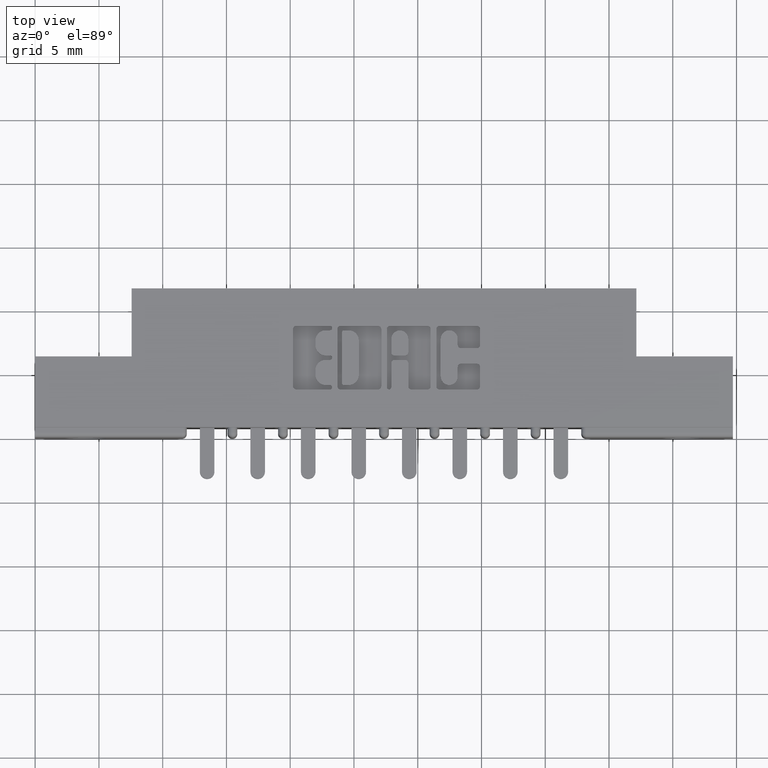
[diagram: clean part render]
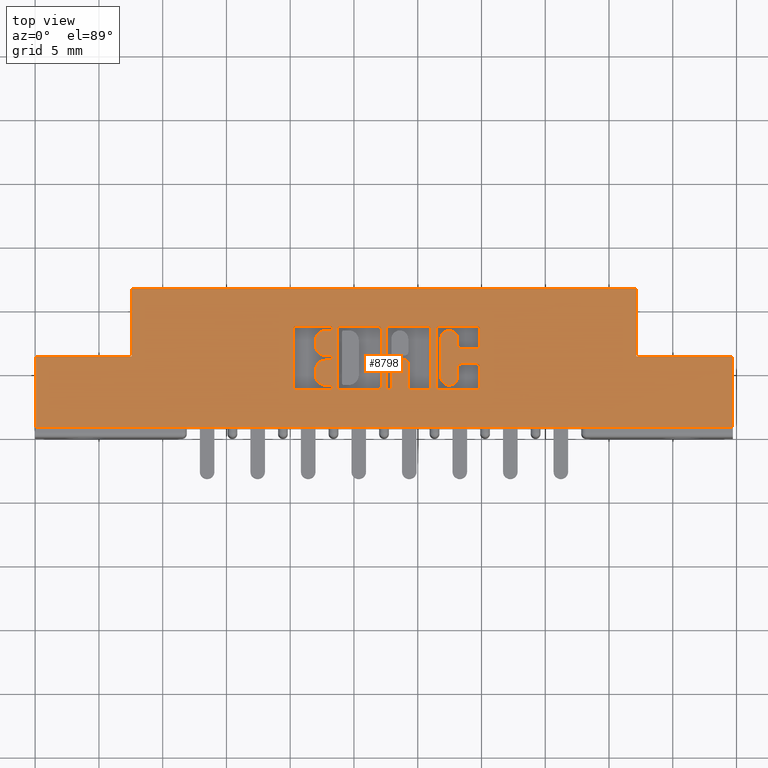
[diagram: same view with one face highlighted and labeled with its STEP entity id]
A machine part, top view. The second image highlights one B-rep face of the part: STEP entity #8798.
In plain terms, the highlighted planar face has unit normal (0, 0, -1).
Its self-contained STEP definition (entity closure, byte-faithful):
#1 = DIRECTION ( 'NONE',  ( -0.0000000000000000000, 0.0000000000000000000, 1.000000000000000000 ) ) ;
#2 = AXIS2_PLACEMENT_3D ( 'NONE', #3667, #3717, #10406 ) ;
#21 = CARTESIAN_POINT ( 'NONE',  ( 0.9101336065353514700, 0.3367857328953892700, 0.0000000000000000000 ) ) ;
#28 = LINE ( 'NONE', #2415, #11050 ) ;
#37 = ORIENTED_EDGE ( 'NONE', *, *, #8806, .F. ) ;
#42 = VERTEX_POINT ( 'NONE', #8355 ) ;
#43 = LINE ( 'NONE', #6203, #11974 ) ;
#47 = EDGE_LOOP ( 'NONE', ( #692, #10960, #11804, #3870, #10270, #9288, #11392, #4095 ) ) ;
#94 = DIRECTION ( 'NONE',  ( 1.000000000000000000, 0.0000000000000000000, 0.0000000000000000000 ) ) ;
#141 = EDGE_CURVE ( 'NONE', #7538, #1929, #4172, .T. ) ;
#168 = DIRECTION ( 'NONE',  ( -0.0000000000000000000, 0.0000000000000000000, 1.000000000000000000 ) ) ;
#197 = EDGE_CURVE ( 'NONE', #6405, #11685, #3413, .T. ) ;
#274 = ORIENTED_EDGE ( 'NONE', *, *, #9663, .F. ) ;
#282 = VECTOR ( 'NONE', #3290, 39.37007874015748100 ) ;
#298 = EDGE_LOOP ( 'NONE', ( #11876, #9888, #2341, #11479, #400, #11168, #1679, #454, #12674, #11080, #3527, #12098, #2391, #9557, #3407, #8560, #5893, #1800, #7988, #2490 ) ) ;
#341 = CIRCLE ( 'NONE', #811, 0.009815670203796511200 ) ;
#380 = CIRCLE ( 'NONE', #9877, 0.03141014465217440600 ) ;
#381 = EDGE_CURVE ( 'NONE', #11785, #7505, #5803, .T. ) ;
#392 = ORIENTED_EDGE ( 'NONE', *, *, #12428, .F. ) ;
#400 = ORIENTED_EDGE ( 'NONE', *, *, #11337, .T. ) ;
#426 = ORIENTED_EDGE ( 'NONE', *, *, #9522, .T. ) ;
#430 = VERTEX_POINT ( 'NONE', #2569 ) ;
#450 = DIRECTION ( 'NONE',  ( -1.000000000000000000, -0.0000000000000000000, -0.0000000000000000000 ) ) ;
#454 = ORIENTED_EDGE ( 'NONE', *, *, #9792, .F. ) ;
#487 = CARTESIAN_POINT ( 'NONE',  ( 1.221044960240806900, 0.1571589681657839000, 0.0000000000000000000 ) ) ;
#498 = LINE ( 'NONE', #9334, #5708 ) ;
#501 = DIRECTION ( 'NONE',  ( -0.0000000000000000000, 0.0000000000000000000, 1.000000000000000000 ) ) ;
#502 = CARTESIAN_POINT ( 'NONE',  ( 1.314293827176977500, 0.2744562271012366800, 0.0000000000000000000 ) ) ;
#504 = LINE ( 'NONE', #11952, #5387 ) ;
#516 = ORIENTED_EDGE ( 'NONE', *, *, #10735, .F. ) ;
#542 = CARTESIAN_POINT ( 'NONE',  ( 1.095404381632127500, 0.3338410318342131500, 0.0000000000000000000 ) ) ;
#593 = DIRECTION ( 'NONE',  ( 0.0000000000000000000, -1.000000000000000000, 0.0000000000000000000 ) ) ;
#614 = VERTEX_POINT ( 'NONE', #3595 ) ;
#639 = EDGE_CURVE ( 'NONE', #7046, #12482, #852, .T. ) ;
#679 = CARTESIAN_POINT ( 'NONE',  ( 0.2979999999999999900, 0.2500000000000000600, 0.0000000000000000000 ) ) ;
#680 = VERTEX_POINT ( 'NONE', #1386 ) ;
#682 = LINE ( 'NONE', #11570, #9560 ) ;
#692 = ORIENTED_EDGE ( 'NONE', *, *, #12637, .F. ) ;
#750 = EDGE_CURVE ( 'NONE', #6405, #5198, #11383, .T. ) ;
#763 = CARTESIAN_POINT ( 'NONE',  ( 1.058595618367862200, 0.1473432979619862500, 0.0000000000000000000 ) ) ;
#790 = ORIENTED_EDGE ( 'NONE', *, *, #5836, .T. ) ;
#811 = AXIS2_PLACEMENT_3D ( 'NONE', #542, #7381, #7473 ) ;
#852 = LINE ( 'NONE', #5234, #9750 ) ;
#923 = AXIS2_PLACEMENT_3D ( 'NONE', #2074, #11886, #8062 ) ;
#943 = AXIS2_PLACEMENT_3D ( 'NONE', #6930, #5495, #94 ) ;
#945 = CARTESIAN_POINT ( 'NONE',  ( 1.109146319917450300, 0.2386290308573517100, 0.0000000000000000000 ) ) ;
#981 = DIRECTION ( 'NONE',  ( -0.0000000000000000000, 0.0000000000000000000, 1.000000000000000000 ) ) ;
#995 = VECTOR ( 'NONE', #4635, 39.37007874015748100 ) ;
#1001 = VECTOR ( 'NONE', #2649, 39.37007874015748100 ) ;
#1008 = VECTOR ( 'NONE', #11612, 39.37007874015748100 ) ;
#1009 = CARTESIAN_POINT ( 'NONE',  ( 1.856000000000000100, 0.2500000000000000600, 0.0000000000000000000 ) ) ;
#1040 = VECTOR ( 'NONE', #4679, 39.37007874015748100 ) ;
#1052 = VERTEX_POINT ( 'NONE', #4499 ) ;
#1070 = ORIENTED_EDGE ( 'NONE', *, *, #7882, .F. ) ;
#1072 = VECTOR ( 'NONE', #9507, 39.37007874015748100 ) ;
#1077 = DIRECTION ( 'NONE',  ( 1.000000000000000000, 0.0000000000000000000, 0.0000000000000000000 ) ) ;
#1091 = CARTESIAN_POINT ( 'NONE',  ( 1.099330649713647000, 0.2288133606535486500, 0.0000000000000000000 ) ) ;
#1118 = EDGE_CURVE ( 'NONE', #11872, #3286, #6300, .T. ) ;
#1120 = CARTESIAN_POINT ( 'NONE',  ( 0.9101336065353514700, 0.3436567020380357200, 0.0000000000000000000 ) ) ;
#1180 = ORIENTED_EDGE ( 'NONE', *, *, #3347, .T. ) ;
#1186 = LINE ( 'NONE', #8394, #5017 ) ;
#1191 = EDGE_CURVE ( 'NONE', #5287, #11361, #8142, .T. ) ;
#1218 = AXIS2_PLACEMENT_3D ( 'NONE', #9057, #10038, #11007 ) ;
#1241 = EDGE_CURVE ( 'NONE', #5364, #7138, #10730, .T. ) ;
#1265 = LINE ( 'NONE', #10485, #1707 ) ;
#1279 = VECTOR ( 'NONE', #2520, 39.37007874015748100 ) ;
#1364 = CARTESIAN_POINT ( 'NONE',  ( 2.153999999999999900, 0.2500000000000000600, 0.0000000000000000000 ) ) ;
#1378 = CARTESIAN_POINT ( 'NONE',  ( 0.8966370600051096800, 0.1924953808994934500, 0.0000000000000000000 ) ) ;
#1382 = DIRECTION ( 'NONE',  ( 1.000000000000000000, 0.0000000000000000000, 0.0000000000000000000 ) ) ;
#1386 = CARTESIAN_POINT ( 'NONE',  ( 2.153999999999999900, 0.03100000000000000000, 0.0000000000000000000 ) ) ;
#1398 = DIRECTION ( 'NONE',  ( 1.000000000000000000, 0.0000000000000000000, 0.0000000000000000000 ) ) ;
#1416 = AXIS2_PLACEMENT_3D ( 'NONE', #4384, #12222, #1382 ) ;
#1423 = EDGE_CURVE ( 'NONE', #11957, #8886, #6138, .T. ) ;
#1427 = AXIS2_PLACEMENT_3D ( 'NONE', #1678, #7493, #7668 ) ;
#1442 = CIRCLE ( 'NONE', #6728, 0.006870969142648433200 ) ;
#1447 = CARTESIAN_POINT ( 'NONE',  ( 0.9101336064154144100, 0.1473432979619887500, 0.0000000000000000000 ) ) ;
#1468 = CARTESIAN_POINT ( 'NONE',  ( 1.856000000000000100, 0.4600000000000000200, 0.0000000000000000000 ) ) ;
#1483 = CARTESIAN_POINT ( 'NONE',  ( 1.085588711428330900, 0.3338410318342131500, 0.0000000000000000000 ) ) ;
#1502 = CARTESIAN_POINT ( 'NONE',  ( 0.8966370600051096800, 0.1610852362473116600, 0.0000000000000000000 ) ) ;
#1534 = VECTOR ( 'NONE', #10140, 39.37007874015748100 ) ;
#1575 = AXIS2_PLACEMENT_3D ( 'NONE', #5791, #1, #12588 ) ;
#1596 = ORIENTED_EDGE ( 'NONE', *, *, #3758, .F. ) ;
#1639 = CARTESIAN_POINT ( 'NONE',  ( 1.058595618367896200, 0.3436567020380540400, 0.0000000000000000000 ) ) ;
#1649 = VECTOR ( 'NONE', #10962, 39.37007874015748100 ) ;
#1668 = ORIENTED_EDGE ( 'NONE', *, *, #8746, .F. ) ;
#1676 = VERTEX_POINT ( 'NONE', #5939 ) ;
#1678 = CARTESIAN_POINT ( 'NONE',  ( 1.058595618367862200, 0.1571589681657930300, 0.0000000000000000000 ) ) ;
#1679 = ORIENTED_EDGE ( 'NONE', *, *, #750, .T. ) ;
#1707 = VECTOR ( 'NONE', #3562, 39.37007874015748100 ) ;
#1712 = VECTOR ( 'NONE', #9011, 39.37007874015748100 ) ;
#1716 = CARTESIAN_POINT ( 'NONE',  ( 1.251964321382818400, 0.3036578459575326500, 0.0000000000000000000 ) ) ;
#1718 = AXIS2_PLACEMENT_3D ( 'NONE', #12606, #6719, #1848 ) ;
#1755 = VERTEX_POINT ( 'NONE', #4264 ) ;
#1800 = ORIENTED_EDGE ( 'NONE', *, *, #2128, .F. ) ;
#1820 = DIRECTION ( 'NONE',  ( 1.000000000000000000, 0.0000000000000000000, 0.0000000000000000000 ) ) ;
#1840 = EDGE_CURVE ( 'NONE', #5756, #4029, #504, .T. ) ;
#1848 = DIRECTION ( 'NONE',  ( 1.000000000000000000, 0.0000000000000000000, 0.0000000000000000000 ) ) ;
#1861 = CARTESIAN_POINT ( 'NONE',  ( 0.9101336064153888700, 0.2386290308573598700, 0.0000000000000000000 ) ) ;
#1863 = DIRECTION ( 'NONE',  ( 1.000000000000000000, 0.0000000000000000000, 0.0000000000000000000 ) ) ;
#1875 = AXIS2_PLACEMENT_3D ( 'NONE', #9119, #8053, #3228 ) ;
#1885 = VERTEX_POINT ( 'NONE', #1447 ) ;
#1903 = EDGE_CURVE ( 'NONE', #1052, #12482, #341, .T. ) ;
#1909 = DIRECTION ( 'NONE',  ( 0.0000000000000000000, -1.000000000000000000, 0.0000000000000000000 ) ) ;
#1914 = CARTESIAN_POINT ( 'NONE',  ( 1.363862961706167100, 0.2842718973050417100, 0.0000000000000000000 ) ) ;
#1929 = VERTEX_POINT ( 'NONE', #4971 ) ;
#1936 = VERTEX_POINT ( 'NONE', #1120 ) ;
#1958 = LINE ( 'NONE', #10204, #11327 ) ;
#1977 = DIRECTION ( 'NONE',  ( -0.0000000000000000000, 0.0000000000000000000, 1.000000000000000000 ) ) ;
#2049 = LINE ( 'NONE', #7677, #12645 ) ;
#2063 = CARTESIAN_POINT ( 'NONE',  ( 1.161660155507785700, 0.1473432979619876700, 0.0000000000000000000 ) ) ;
#2067 = VERTEX_POINT ( 'NONE', #2063 ) ;
#2074 = CARTESIAN_POINT ( 'NONE',  ( 1.161660155507788100, 0.1571589681657909200, 0.0000000000000000000 ) ) ;
#2125 = DIRECTION ( 'NONE',  ( -0.0000000000000000000, 0.0000000000000000000, 1.000000000000000000 ) ) ;
#2128 = EDGE_CURVE ( 'NONE', #9559, #7210, #43, .T. ) ;
#2164 = CIRCLE ( 'NONE', #11744, 0.009815670203796237100 ) ;
#2169 = LINE ( 'NONE', #6316, #6035 ) ;
#2173 = CARTESIAN_POINT ( 'NONE',  ( 2.153999999999999900, 0.2500000000000000600, 0.0000000000000000000 ) ) ;
#2176 = CARTESIAN_POINT ( 'NONE',  ( 1.151844485303984600, 0.0000000000000000000, 0.0000000000000000000 ) ) ;
#2228 = DIRECTION ( 'NONE',  ( 0.0000000000000000000, -1.000000000000000000, 0.0000000000000000000 ) ) ;
#2247 = DIRECTION ( 'NONE',  ( 1.000000000000000000, 0.0000000000000000000, 0.0000000000000000000 ) ) ;
#2266 = CARTESIAN_POINT ( 'NONE',  ( 2.153999999999999900, 0.4600000000000000200, 0.0000000000000000000 ) ) ;
#2299 = CARTESIAN_POINT ( 'NONE',  ( 0.8966370600050841400, 0.2386290308573598700, 0.0000000000000000000 ) ) ;
#2341 = ORIENTED_EDGE ( 'NONE', *, *, #10581, .F. ) ;
#2391 = ORIENTED_EDGE ( 'NONE', *, *, #4376, .F. ) ;
#2406 = CARTESIAN_POINT ( 'NONE',  ( 1.248038053301265400, 0.1571589681657930300, 0.0000000000000000000 ) ) ;
#2415 = CARTESIAN_POINT ( 'NONE',  ( -0.0000000000000000000, 0.1473432979619862500, 0.0000000000000000000 ) ) ;
#2433 = CARTESIAN_POINT ( 'NONE',  ( 0.9101336065353100600, 0.2455000000000234200, 0.0000000000000000000 ) ) ;
#2444 = VECTOR ( 'NONE', #11575, 39.37007874015748100 ) ;
#2447 = CARTESIAN_POINT ( 'NONE',  ( 1.373678631909940300, 0.2170345564089734800, 0.0000000000000000000 ) ) ;
#2490 = ORIENTED_EDGE ( 'NONE', *, *, #6647, .F. ) ;
#2520 = DIRECTION ( 'NONE',  ( -1.000000000000000000, 0.0000000000000000000, 0.0000000000000000000 ) ) ;
#2546 = ORIENTED_EDGE ( 'NONE', *, *, #1903, .F. ) ;
#2569 = CARTESIAN_POINT ( 'NONE',  ( 0.2979999999999999900, 0.2500000000000000600, 0.0000000000000000000 ) ) ;
#2570 = CARTESIAN_POINT ( 'NONE',  ( -8.177847276076744500E-015, 0.2386290308573137100, 0.0000000000000000000 ) ) ;
#2574 = EDGE_CURVE ( 'NONE', #7505, #5645, #11282, .T. ) ;
#2596 = DIRECTION ( 'NONE',  ( 0.0000000000000000000, 1.000000000000000000, -0.0000000000000000000 ) ) ;
#2622 = ORIENTED_EDGE ( 'NONE', *, *, #3711, .T. ) ;
#2623 = DIRECTION ( 'NONE',  ( 1.000000000000000000, 0.0000000000000000000, 0.0000000000000000000 ) ) ;
#2625 = ORIENTED_EDGE ( 'NONE', *, *, #7788, .F. ) ;
#2628 = LINE ( 'NONE', #10258, #10156 ) ;
#2642 = VERTEX_POINT ( 'NONE', #4292 ) ;
#2648 = ORIENTED_EDGE ( 'NONE', *, *, #5294, .F. ) ;
#2649 = DIRECTION ( 'NONE',  ( -1.000000000000000000, 0.0000000000000000000, 0.0000000000000000000 ) ) ;
#2660 = VERTEX_POINT ( 'NONE', #10347 ) ;
#2714 = VECTOR ( 'NONE', #10917, 39.37007874015748100 ) ;
#2851 = ORIENTED_EDGE ( 'NONE', *, *, #8930, .F. ) ;
#2882 = VERTEX_POINT ( 'NONE', #9153 ) ;
#2945 = CARTESIAN_POINT ( 'NONE',  ( 1.068411288571669000, 0.0000000000000000000, 0.0000000000000000000 ) ) ;
#2960 = VECTOR ( 'NONE', #1820, 39.37007874015748100 ) ;
#2962 = EDGE_CURVE ( 'NONE', #5645, #1755, #11363, .T. ) ;
#2986 = DIRECTION ( 'NONE',  ( 1.000000000000000000, 0.0000000000000000000, 0.0000000000000000000 ) ) ;
#3062 = ORIENTED_EDGE ( 'NONE', *, *, #11398, .F. ) ;
#3077 = DIRECTION ( 'NONE',  ( 1.000000000000000000, 0.0000000000000000000, 0.0000000000000000000 ) ) ;
#3081 = EDGE_CURVE ( 'NONE', #4840, #4842, #8800, .T. ) ;
#3124 = DIRECTION ( 'NONE',  ( 1.000000000000000000, 0.0000000000000000000, 0.0000000000000000000 ) ) ;
#3165 = VERTEX_POINT ( 'NONE', #8974 ) ;
#3187 = DIRECTION ( 'NONE',  ( -0.0000000000000000000, 0.0000000000000000000, 1.000000000000000000 ) ) ;
#3228 = DIRECTION ( 'NONE',  ( 1.000000000000000000, 0.0000000000000000000, 0.0000000000000000000 ) ) ;
#3250 = AXIS2_PLACEMENT_3D ( 'NONE', #3313, #3187, #2247 ) ;
#3256 = VERTEX_POINT ( 'NONE', #4921 ) ;
#3286 = VERTEX_POINT ( 'NONE', #10665 ) ;
#3290 = DIRECTION ( 'NONE',  ( 0.0000000000000000000, -1.000000000000000000, 0.0000000000000000000 ) ) ;
#3313 = CARTESIAN_POINT ( 'NONE',  ( 1.142028815100187800, 0.2288133606535558700, 0.0000000000000000000 ) ) ;
#3332 = VERTEX_POINT ( 'NONE', #7763 ) ;
#3347 = EDGE_CURVE ( 'NONE', #614, #6518, #682, .T. ) ;
#3375 = VERTEX_POINT ( 'NONE', #1091 ) ;
#3394 = CARTESIAN_POINT ( 'NONE',  ( 0.8966370600051254400, 0.3299147637527387600, 0.0000000000000000000 ) ) ;
#3407 = ORIENTED_EDGE ( 'NONE', *, *, #5541, .F. ) ;
#3413 = LINE ( 'NONE', #4581, #995 ) ;
#3450 = CIRCLE ( 'NONE', #5336, 0.009815670203806754800 ) ;
#3527 = ORIENTED_EDGE ( 'NONE', *, *, #5815, .F. ) ;
#3562 = DIRECTION ( 'NONE',  ( -1.000000000000000000, 0.0000000000000000000, 0.0000000000000000000 ) ) ;
#3584 = CARTESIAN_POINT ( 'NONE',  ( 0.9170045756779977600, 0.1542142671046510300, 0.0000000000000000000 ) ) ;
#3595 = CARTESIAN_POINT ( 'NONE',  ( 0.0000000000000000000, 0.2500000000000000600, 0.0000000000000000000 ) ) ;
#3615 = AXIS2_PLACEMENT_3D ( 'NONE', #9073, #11071, #5197 ) ;
#3620 = LINE ( 'NONE', #679, #1040 ) ;
#3659 = CARTESIAN_POINT ( 'NONE',  ( 1.085588711428330900, 0.1542142671046510300, 0.0000000000000000000 ) ) ;
#3667 = CARTESIAN_POINT ( 'NONE',  ( 0.9101336065353355900, 0.1542142671046510300, 0.0000000000000000000 ) ) ;
#3711 = EDGE_CURVE ( 'NONE', #1052, #2882, #10108, .T. ) ;
#3717 = DIRECTION ( 'NONE',  ( -0.0000000000000000000, 0.0000000000000000000, 1.000000000000000000 ) ) ;
#3758 = EDGE_CURVE ( 'NONE', #6258, #7676, #7492, .T. ) ;
#3847 = VERTEX_POINT ( 'NONE', #8075 ) ;
#3870 = ORIENTED_EDGE ( 'NONE', *, *, #11072, .F. ) ;
#3877 = EDGE_CURVE ( 'NONE', #3375, #10859, #2169, .T. ) ;
#3892 = CARTESIAN_POINT ( 'NONE',  ( -0.0000000000000000000, 0.1473432979619862500, 0.0000000000000000000 ) ) ;
#3944 = CIRCLE ( 'NONE', #10123, 0.009815670203806345400 ) ;
#3972 = DIRECTION ( 'NONE',  ( 1.000000000000000000, 0.0000000000000000000, 0.0000000000000000000 ) ) ;
#4012 = CARTESIAN_POINT ( 'NONE',  ( 0.8966370600050841400, 0.2072188862052036200, 0.0000000000000000000 ) ) ;
#4027 = CARTESIAN_POINT ( 'NONE',  ( 1.363862961706167100, 0.2744562271012366800, 0.0000000000000000000 ) ) ;
#4029 = VERTEX_POINT ( 'NONE', #4027 ) ;
#4031 = ORIENTED_EDGE ( 'NONE', *, *, #9745, .F. ) ;
#4082 = CARTESIAN_POINT ( 'NONE',  ( -0.0000000000000000000, 0.3299147637527387600, 0.0000000000000000000 ) ) ;
#4090 = CARTESIAN_POINT ( 'NONE',  ( -1.915567620543177100E-014, 0.1610852362472050500, 0.0000000000000000000 ) ) ;
#4095 = ORIENTED_EDGE ( 'NONE', *, *, #1241, .F. ) ;
#4115 = DIRECTION ( 'NONE',  ( 1.000000000000000000, 0.0000000000000000000, 0.0000000000000000000 ) ) ;
#4134 = CARTESIAN_POINT ( 'NONE',  ( 1.278221239177998800, 0.1873421540424560800, 0.0000000000000000000 ) ) ;
#4135 = CIRCLE ( 'NONE', #4347, 0.009815670203822599700 ) ;
#4172 = CIRCLE ( 'NONE', #1427, 0.009815670203806891800 ) ;
#4253 = EDGE_CURVE ( 'NONE', #1885, #6258, #5317, .T. ) ;
#4264 = CARTESIAN_POINT ( 'NONE',  ( 0.9101336065353100600, 0.2523709691426869200, 0.0000000000000000000 ) ) ;
#4292 = CARTESIAN_POINT ( 'NONE',  ( 0.8652269153529097400, 0.2985046191005228900, 0.0000000000000000000 ) ) ;
#4347 = AXIS2_PLACEMENT_3D ( 'NONE', #6600, #7626, #2623 ) ;
#4376 = EDGE_CURVE ( 'NONE', #8171, #3256, #3944, .T. ) ;
#4384 = CARTESIAN_POINT ( 'NONE',  ( 1.314293827176977500, 0.2842718973050482600, 0.0000000000000000000 ) ) ;
#4457 = CIRCLE ( 'NONE', #12416, 0.03141014465218178200 ) ;
#4499 = CARTESIAN_POINT ( 'NONE',  ( 1.095404381632127500, 0.3436567020380096300, 0.0000000000000000000 ) ) ;
#4502 = CARTESIAN_POINT ( 'NONE',  ( 1.151844485303984600, 0.2288133606535465200, 0.0000000000000000000 ) ) ;
#4568 = VERTEX_POINT ( 'NONE', #8251 ) ;
#4581 = CARTESIAN_POINT ( 'NONE',  ( 1.251964321382818400, 0.0000000000000000000, 0.0000000000000000000 ) ) ;
#4635 = DIRECTION ( 'NONE',  ( 0.0000000000000000000, 1.000000000000000000, -0.0000000000000000000 ) ) ;
#4643 = CARTESIAN_POINT ( 'NONE',  ( 0.0000000000000000000, 0.4600000000000000200, 0.0000000000000000000 ) ) ;
#4675 = FACE_BOUND ( 'NONE', #298, .T. ) ;
#4679 = DIRECTION ( 'NONE',  ( -0.0000000000000000000, 1.000000000000000000, -0.0000000000000000000 ) ) ;
#4710 = ORIENTED_EDGE ( 'NONE', *, *, #7406, .T. ) ;
#4764 = CARTESIAN_POINT ( 'NONE',  ( 1.092459680570987000, 0.1542142671046510300, 0.0000000000000000000 ) ) ;
#4773 = EDGE_CURVE ( 'NONE', #8096, #9559, #11287, .T. ) ;
#4776 = EDGE_CURVE ( 'NONE', #1929, #12312, #8396, .T. ) ;
#4795 = EDGE_CURVE ( 'NONE', #11785, #8105, #6842, .T. ) ;
#4807 = VERTEX_POINT ( 'NONE', #11928 ) ;
#4820 = CARTESIAN_POINT ( 'NONE',  ( 1.109146319917450300, 0.2288133606535486500, 0.0000000000000000000 ) ) ;
#4840 = VERTEX_POINT ( 'NONE', #11809 ) ;
#4842 = VERTEX_POINT ( 'NONE', #10837 ) ;
#4852 = CARTESIAN_POINT ( 'NONE',  ( -1.013135022034645900E-015, 0.1473432979619824800, 0.0000000000000000000 ) ) ;
#4865 = ORIENTED_EDGE ( 'NONE', *, *, #6361, .T. ) ;
#4906 = DIRECTION ( 'NONE',  ( 0.0000000000000000000, -1.000000000000000000, 0.0000000000000000000 ) ) ;
#4908 = DIRECTION ( 'NONE',  ( 0.0000000000000000000, 1.000000000000000000, -0.0000000000000000000 ) ) ;
#4914 = CARTESIAN_POINT ( 'NONE',  ( 1.248038053301299600, 0.3338410318342131500, 0.0000000000000000000 ) ) ;
#4918 = VERTEX_POINT ( 'NONE', #7235 ) ;
#4921 = CARTESIAN_POINT ( 'NONE',  ( 1.373678631909940300, 0.1571589681657860300, 0.0000000000000000000 ) ) ;
#4956 = EDGE_CURVE ( 'NONE', #5287, #2882, #9820, .T. ) ;
#4961 = CIRCLE ( 'NONE', #11996, 0.006870969142657995000 ) ;
#4966 = EDGE_CURVE ( 'NONE', #7210, #9646, #6876, .T. ) ;
#4971 = CARTESIAN_POINT ( 'NONE',  ( 1.068411288571669000, 0.1571589681657930300, 0.0000000000000000000 ) ) ;
#4999 = CARTESIAN_POINT ( 'NONE',  ( 1.363862961706134200, 0.1473432979619862500, 0.0000000000000000000 ) ) ;
#5004 = DIRECTION ( 'NONE',  ( -0.0000000000000000000, 0.0000000000000000000, 1.000000000000000000 ) ) ;
#5017 = VECTOR ( 'NONE', #7317, 39.37007874015748100 ) ;
#5024 = VERTEX_POINT ( 'NONE', #7060 ) ;
#5078 = VECTOR ( 'NONE', #5733, 39.37007874015748100 ) ;
#5139 = DIRECTION ( 'NONE',  ( 0.0000000000000000000, 1.000000000000000000, -0.0000000000000000000 ) ) ;
#5148 = VERTEX_POINT ( 'NONE', #11053 ) ;
#5177 = VERTEX_POINT ( 'NONE', #12044 ) ;
#5180 = CARTESIAN_POINT ( 'NONE',  ( 1.304478156973178900, 0.1873421540424560800, 0.0000000000000000000 ) ) ;
#5197 = DIRECTION ( 'NONE',  ( 1.000000000000000000, 0.0000000000000000000, 0.0000000000000000000 ) ) ;
#5198 = VERTEX_POINT ( 'NONE', #5180 ) ;
#5210 = VECTOR ( 'NONE', #9494, 39.37007874015748100 ) ;
#5216 = AXIS2_PLACEMENT_3D ( 'NONE', #4134, #2125, #3124 ) ;
#5219 = LINE ( 'NONE', #1009, #5078 ) ;
#5231 = EDGE_CURVE ( 'NONE', #12027, #680, #5932, .T. ) ;
#5234 = CARTESIAN_POINT ( 'NONE',  ( 1.085588711428330900, 0.0000000000000000000, 0.0000000000000000000 ) ) ;
#5247 = VECTOR ( 'NONE', #2596, 39.37007874015748100 ) ;
#5284 = AXIS2_PLACEMENT_3D ( 'NONE', #5388, #7292, #6375 ) ;
#5287 = VERTEX_POINT ( 'NONE', #6114 ) ;
#5294 = EDGE_CURVE ( 'NONE', #614, #430, #8192, .T. ) ;
#5317 = CIRCLE ( 'NONE', #8404, 0.006870969142662229500 ) ;
#5328 = DIRECTION ( 'NONE',  ( -1.000000000000000000, 0.0000000000000000000, 0.0000000000000000000 ) ) ;
#5336 = AXIS2_PLACEMENT_3D ( 'NONE', #6441, #7226, #8230 ) ;
#5364 = VERTEX_POINT ( 'NONE', #1639 ) ;
#5387 = VECTOR ( 'NONE', #9064, 39.37007874015748100 ) ;
#5388 = CARTESIAN_POINT ( 'NONE',  ( 0.9427707099630102700, 0.3338410318342131500, 0.0000000000000000000 ) ) ;
#5411 = DIRECTION ( 'NONE',  ( 1.000000000000000000, 0.0000000000000000000, 0.0000000000000000000 ) ) ;
#5473 = ORIENTED_EDGE ( 'NONE', *, *, #1118, .T. ) ;
#5485 = CIRCLE ( 'NONE', #6481, 0.009815670203803203800 ) ;
#5495 = DIRECTION ( 'NONE',  ( -0.0000000000000000000, 0.0000000000000000000, 1.000000000000000000 ) ) ;
#5541 = EDGE_CURVE ( 'NONE', #5717, #4918, #7602, .T. ) ;
#5565 = ORIENTED_EDGE ( 'NONE', *, *, #1191, .T. ) ;
#5624 = EDGE_CURVE ( 'NONE', #8886, #4568, #6546, .T. ) ;
#5645 = VERTEX_POINT ( 'NONE', #6090 ) ;
#5708 = VECTOR ( 'NONE', #450, 39.37007874015748100 ) ;
#5710 = AXIS2_PLACEMENT_3D ( 'NONE', #6656, #6788, #12544 ) ;
#5717 = VERTEX_POINT ( 'NONE', #8129 ) ;
#5718 = EDGE_LOOP ( 'NONE', ( #4865, #7887, #10014, #12408, #12396, #8948, #6552, #12253, #9787, #8641, #8506, #1596, #7232, #10493, #9290, #11403, #10403, #2625, #2851, #3062, #274 ) ) ;
#5733 = DIRECTION ( 'NONE',  ( -0.0000000000000000000, 1.000000000000000000, -0.0000000000000000000 ) ) ;
#5741 = DIRECTION ( 'NONE',  ( 1.000000000000000000, 6.876017002796114900E-015, 0.0000000000000000000 ) ) ;
#5745 = CARTESIAN_POINT ( 'NONE',  ( 1.304478156973165800, 0.0000000000000000000, 0.0000000000000000000 ) ) ;
#5753 = DIRECTION ( 'NONE',  ( 1.000000000000000000, 0.0000000000000000000, 0.0000000000000000000 ) ) ;
#5756 = VERTEX_POINT ( 'NONE', #502 ) ;
#5776 = LINE ( 'NONE', #8855, #1008 ) ;
#5791 = CARTESIAN_POINT ( 'NONE',  ( 1.211229290037011600, 0.3338410318342134300, 0.0000000000000000000 ) ) ;
#5803 = LINE ( 'NONE', #10783, #10363 ) ;
#5815 = EDGE_CURVE ( 'NONE', #6744, #4840, #6042, .T. ) ;
#5827 = CARTESIAN_POINT ( 'NONE',  ( 1.304478156973178900, 0.0000000000000000000, 0.0000000000000000000 ) ) ;
#5836 = EDGE_CURVE ( 'NONE', #10757, #11872, #12462, .T. ) ;
#5893 = ORIENTED_EDGE ( 'NONE', *, *, #4966, .F. ) ;
#5916 = DIRECTION ( 'NONE',  ( -0.0000000000000000000, 0.0000000000000000000, 1.000000000000000000 ) ) ;
#5924 = DIRECTION ( 'NONE',  ( -0.0000000000000000000, 0.0000000000000000000, 1.000000000000000000 ) ) ;
#5932 = LINE ( 'NONE', #2266, #9769 ) ;
#5938 = EDGE_LOOP ( 'NONE', ( #2622, #7201, #5565, #6226, #426, #1668, #790, #5473, #9984, #4710, #9863, #4031, #9445, #2546 ) ) ;
#5939 = CARTESIAN_POINT ( 'NONE',  ( 0.8966370600050841400, 0.2523709691426869200, 0.0000000000000000000 ) ) ;
#5962 = VERTEX_POINT ( 'NONE', #7946 ) ;
#6024 = CARTESIAN_POINT ( 'NONE',  ( 1.363862961706134200, 0.1571589681657930300, 0.0000000000000000000 ) ) ;
#6035 = VECTOR ( 'NONE', #593, 39.37007874015748100 ) ;
#6042 = CIRCLE ( 'NONE', #1218, 0.009815670203787221800 ) ;
#6090 = CARTESIAN_POINT ( 'NONE',  ( 0.9170045756779734400, 0.2455000000000234200, 0.0000000000000000000 ) ) ;
#6097 = EDGE_CURVE ( 'NONE', #5024, #12398, #12446, .T. ) ;
#6100 = CARTESIAN_POINT ( 'NONE',  ( 0.8652269153529097400, 0.2837811137948614300, 0.0000000000000000000 ) ) ;
#6114 = CARTESIAN_POINT ( 'NONE',  ( 1.221044960240806900, 0.3338410318342040500, 0.0000000000000000000 ) ) ;
#6138 = LINE ( 'NONE', #12048, #9826 ) ;
#6155 = LINE ( 'NONE', #2570, #5210 ) ;
#6172 = CARTESIAN_POINT ( 'NONE',  ( 0.9101336064154144100, 0.1610852362473132700, 0.0000000000000000000 ) ) ;
#6203 = CARTESIAN_POINT ( 'NONE',  ( 0.0000000000000000000, 0.3436567020380540400, 0.0000000000000000000 ) ) ;
#6226 = ORIENTED_EDGE ( 'NONE', *, *, #10348, .F. ) ;
#6248 = PLANE ( 'NONE',  #6500 ) ;
#6258 = VERTEX_POINT ( 'NONE', #3584 ) ;
#6300 = CIRCLE ( 'NONE', #3250, 0.009815670203796920600 ) ;
#6316 = CARTESIAN_POINT ( 'NONE',  ( 1.099330649713647000, 0.0000000000000000000, 0.0000000000000000000 ) ) ;
#6361 = EDGE_CURVE ( 'NONE', #12138, #2642, #7669, .T. ) ;
#6369 = VECTOR ( 'NONE', #5741, 39.37007874015748100 ) ;
#6375 = DIRECTION ( 'NONE',  ( 1.000000000000000000, 0.0000000000000000000, 0.0000000000000000000 ) ) ;
#6405 = VERTEX_POINT ( 'NONE', #8744 ) ;
#6433 = EDGE_CURVE ( 'NONE', #7676, #8271, #12298, .T. ) ;
#6441 = CARTESIAN_POINT ( 'NONE',  ( 0.9427707099629760700, 0.1571589681657930300, 0.0000000000000000000 ) ) ;
#6481 = AXIS2_PLACEMENT_3D ( 'NONE', #4820, #5924, #2986 ) ;
#6500 = AXIS2_PLACEMENT_3D ( 'NONE', #4643, #11490, #10649 ) ;
#6518 = VERTEX_POINT ( 'NONE', #10925 ) ;
#6538 = CARTESIAN_POINT ( 'NONE',  ( 0.9101336065353355900, 0.1542142671046510300, 0.0000000000000000000 ) ) ;
#6546 = CIRCLE ( 'NONE', #1875, 0.009815670203805936000 ) ;
#6552 = ORIENTED_EDGE ( 'NONE', *, *, #381, .F. ) ;
#6579 = CARTESIAN_POINT ( 'NONE',  ( 1.363862961706168400, 0.3436567020380540400, 0.0000000000000000000 ) ) ;
#6600 = CARTESIAN_POINT ( 'NONE',  ( 0.8058421106199380500, 0.3338410318342131500, 0.0000000000000000000 ) ) ;
#6647 = EDGE_CURVE ( 'NONE', #5962, #8096, #1958, .T. ) ;
#6656 = CARTESIAN_POINT ( 'NONE',  ( 0.9101336065353514700, 0.3367857328953892700, 0.0000000000000000000 ) ) ;
#6719 = DIRECTION ( 'NONE',  ( -0.0000000000000000000, 0.0000000000000000000, 1.000000000000000000 ) ) ;
#6728 = AXIS2_PLACEMENT_3D ( 'NONE', #21, #5004, #1863 ) ;
#6744 = VERTEX_POINT ( 'NONE', #2447 ) ;
#6764 = EDGE_CURVE ( 'NONE', #3332, #2660, #10382, .T. ) ;
#6788 = DIRECTION ( 'NONE',  ( -0.0000000000000000000, 0.0000000000000000000, 1.000000000000000000 ) ) ;
#6810 = CARTESIAN_POINT ( 'NONE',  ( 0.9427707099630102700, 0.3436567020380540400, 0.0000000000000000000 ) ) ;
#6842 = CIRCLE ( 'NONE', #8337, 0.03141014465215624000 ) ;
#6847 = DIRECTION ( 'NONE',  ( 1.000000000000000000, 0.0000000000000000000, 0.0000000000000000000 ) ) ;
#6876 = CIRCLE ( 'NONE', #11881, 0.009815670203841039800 ) ;
#6930 = CARTESIAN_POINT ( 'NONE',  ( 1.278221239177992100, 0.3036578459575326500, 0.0000000000000000000 ) ) ;
#6977 = CARTESIAN_POINT ( 'NONE',  ( 1.373678631909972100, 0.3338410318341978300, 0.0000000000000000000 ) ) ;
#7046 = VERTEX_POINT ( 'NONE', #3659 ) ;
#7060 = CARTESIAN_POINT ( 'NONE',  ( 1.304478156973165800, 0.3036578454992629500, 0.0000000000000000000 ) ) ;
#7138 = VERTEX_POINT ( 'NONE', #6810 ) ;
#7201 = ORIENTED_EDGE ( 'NONE', *, *, #4956, .F. ) ;
#7210 = VERTEX_POINT ( 'NONE', #10829 ) ;
#7213 = LINE ( 'NONE', #11541, #1072 ) ;
#7226 = DIRECTION ( 'NONE',  ( -0.0000000000000000000, 0.0000000000000000000, 1.000000000000000000 ) ) ;
#7232 = ORIENTED_EDGE ( 'NONE', *, *, #4253, .F. ) ;
#7235 = CARTESIAN_POINT ( 'NONE',  ( 1.248038053301265400, 0.1473432979619862500, 0.0000000000000000000 ) ) ;
#7292 = DIRECTION ( 'NONE',  ( -0.0000000000000000000, 0.0000000000000000000, 1.000000000000000000 ) ) ;
#7317 = DIRECTION ( 'NONE',  ( -1.000000000000000000, 0.0000000000000000000, 0.0000000000000000000 ) ) ;
#7381 = DIRECTION ( 'NONE',  ( -0.0000000000000000000, 0.0000000000000000000, 1.000000000000000000 ) ) ;
#7406 = EDGE_CURVE ( 'NONE', #12661, #3375, #5485, .T. ) ;
#7473 = DIRECTION ( 'NONE',  ( 1.000000000000000000, 0.0000000000000000000, 0.0000000000000000000 ) ) ;
#7492 = CIRCLE ( 'NONE', #2, 0.006870969142662229500 ) ;
#7493 = DIRECTION ( 'NONE',  ( -0.0000000000000000000, 0.0000000000000000000, 1.000000000000000000 ) ) ;
#7505 = VERTEX_POINT ( 'NONE', #1861 ) ;
#7538 = VERTEX_POINT ( 'NONE', #763 ) ;
#7540 = VECTOR ( 'NONE', #4906, 39.37007874015748100 ) ;
#7588 = VERTEX_POINT ( 'NONE', #11608 ) ;
#7602 = CIRCLE ( 'NONE', #9930, 0.009815670203806891800 ) ;
#7626 = DIRECTION ( 'NONE',  ( -0.0000000000000000000, 0.0000000000000000000, 1.000000000000000000 ) ) ;
#7668 = DIRECTION ( 'NONE',  ( 1.000000000000000000, 0.0000000000000000000, 0.0000000000000000000 ) ) ;
#7669 = CIRCLE ( 'NONE', #1718, 0.03141014465221578900 ) ;
#7676 = VERTEX_POINT ( 'NONE', #6172 ) ;
#7677 = CARTESIAN_POINT ( 'NONE',  ( 1.238222383097458600, 0.0000000000000000000, 0.0000000000000000000 ) ) ;
#7680 = CARTESIAN_POINT ( 'NONE',  ( -0.0000000000000000000, 0.3436567020380096300, 0.0000000000000000000 ) ) ;
#7734 = CARTESIAN_POINT ( 'NONE',  ( 1.058595618367828000, 0.3338410318342129900, 0.0000000000000000000 ) ) ;
#7763 = CARTESIAN_POINT ( 'NONE',  ( 0.9329550397591692700, 0.3338410318342131500, 0.0000000000000000000 ) ) ;
#7788 = EDGE_CURVE ( 'NONE', #1936, #4807, #1186, .T. ) ;
#7821 = EDGE_CURVE ( 'NONE', #2660, #3165, #3450, .T. ) ;
#7853 = CIRCLE ( 'NONE', #943, 0.02625691779517367100 ) ;
#7882 = EDGE_CURVE ( 'NONE', #430, #11440, #3620, .T. ) ;
#7887 = ORIENTED_EDGE ( 'NONE', *, *, #10906, .F. ) ;
#7946 = CARTESIAN_POINT ( 'NONE',  ( 1.373678631909972100, 0.2842718973050417100, 0.0000000000000000000 ) ) ;
#7988 = ORIENTED_EDGE ( 'NONE', *, *, #4773, .F. ) ;
#8053 = DIRECTION ( 'NONE',  ( -0.0000000000000000000, 0.0000000000000000000, 1.000000000000000000 ) ) ;
#8062 = DIRECTION ( 'NONE',  ( 1.000000000000000000, 0.0000000000000000000, 0.0000000000000000000 ) ) ;
#8072 = LINE ( 'NONE', #4852, #6369 ) ;
#8075 = CARTESIAN_POINT ( 'NONE',  ( 1.304478156973178900, 0.2170345564089717300, 0.0000000000000000000 ) ) ;
#8096 = VERTEX_POINT ( 'NONE', #6977 ) ;
#8105 = VERTEX_POINT ( 'NONE', #8816 ) ;
#8129 = CARTESIAN_POINT ( 'NONE',  ( 1.238222383097458600, 0.1571589681657930300, 0.0000000000000000000 ) ) ;
#8142 = LINE ( 'NONE', #8227, #1534 ) ;
#8157 = EDGE_CURVE ( 'NONE', #4029, #5962, #10221, .T. ) ;
#8171 = VERTEX_POINT ( 'NONE', #4999 ) ;
#8192 = LINE ( 'NONE', #10603, #2960 ) ;
#8193 = LINE ( 'NONE', #4082, #11382 ) ;
#8227 = CARTESIAN_POINT ( 'NONE',  ( 1.221044960240806900, 0.0000000000000000000, 0.0000000000000000000 ) ) ;
#8230 = DIRECTION ( 'NONE',  ( 1.000000000000000000, 0.0000000000000000000, 0.0000000000000000000 ) ) ;
#8251 = CARTESIAN_POINT ( 'NONE',  ( 0.8058421106199185100, 0.1473432979619880300, 0.0000000000000000000 ) ) ;
#8252 = DIRECTION ( 'NONE',  ( -0.0000000000000000000, 0.0000000000000000000, 1.000000000000000000 ) ) ;
#8271 = VERTEX_POINT ( 'NONE', #1502 ) ;
#8337 = AXIS2_PLACEMENT_3D ( 'NONE', #4012, #9862, #3077 ) ;
#8355 = CARTESIAN_POINT ( 'NONE',  ( 0.9170045756779998700, 0.3367857328953892700, 0.0000000000000000000 ) ) ;
#8384 = FACE_BOUND ( 'NONE', #5938, .T. ) ;
#8394 = CARTESIAN_POINT ( 'NONE',  ( 0.0000000000000000000, 0.3436567020380357200, 0.0000000000000000000 ) ) ;
#8396 = LINE ( 'NONE', #2945, #2714 ) ;
#8404 = AXIS2_PLACEMENT_3D ( 'NONE', #6538, #8452, #11381 ) ;
#8452 = DIRECTION ( 'NONE',  ( -0.0000000000000000000, 0.0000000000000000000, 1.000000000000000000 ) ) ;
#8506 = ORIENTED_EDGE ( 'NONE', *, *, #6433, .F. ) ;
#8548 = EDGE_CURVE ( 'NONE', #4918, #8171, #8840, .T. ) ;
#8560 = ORIENTED_EDGE ( 'NONE', *, *, #8971, .F. ) ;
#8571 = CARTESIAN_POINT ( 'NONE',  ( 1.238222383097458600, 0.3338410318342131500, 0.0000000000000000000 ) ) ;
#8641 = ORIENTED_EDGE ( 'NONE', *, *, #10216, .T. ) ;
#8732 = CARTESIAN_POINT ( 'NONE',  ( 0.9101336065353100600, 0.2455000000000234200, 0.0000000000000000000 ) ) ;
#8744 = CARTESIAN_POINT ( 'NONE',  ( 1.251964321382818400, 0.1873421540424560800, 0.0000000000000000000 ) ) ;
#8746 = EDGE_CURVE ( 'NONE', #10757, #2067, #9294, .T. ) ;
#8768 = CARTESIAN_POINT ( 'NONE',  ( 0.2979999999999999900, 0.4600000000000000200, 0.0000000000000000000 ) ) ;
#8773 = DIRECTION ( 'NONE',  ( -0.0000000000000000000, 0.0000000000000000000, 1.000000000000000000 ) ) ;
#8798 = ADVANCED_FACE ( 'NONE', ( #4675, #8998, #10666, #9139, #8384 ), #6248, .F. ) ;
#8800 = LINE ( 'NONE', #11433, #1279 ) ;
#8806 = EDGE_CURVE ( 'NONE', #11440, #10794, #5776, .T. ) ;
#8811 = AXIS2_PLACEMENT_3D ( 'NONE', #9942, #168, #11891 ) ;
#8816 = CARTESIAN_POINT ( 'NONE',  ( 0.8652269153529278400, 0.2072188862052036200, 0.0000000000000000000 ) ) ;
#8833 = EDGE_CURVE ( 'NONE', #4568, #1885, #8072, .T. ) ;
#8840 = LINE ( 'NONE', #3892, #12666 ) ;
#8849 = DIRECTION ( 'NONE',  ( 1.000000000000000000, 0.0000000000000000000, 0.0000000000000000000 ) ) ;
#8855 = CARTESIAN_POINT ( 'NONE',  ( 0.0000000000000000000, 0.4600000000000000200, 0.0000000000000000000 ) ) ;
#8886 = VERTEX_POINT ( 'NONE', #11296 ) ;
#8930 = EDGE_CURVE ( 'NONE', #42, #1936, #1442, .T. ) ;
#8948 = ORIENTED_EDGE ( 'NONE', *, *, #2574, .F. ) ;
#8967 = EDGE_CURVE ( 'NONE', #8990, #8105, #11556, .T. ) ;
#8970 = LINE ( 'NONE', #12427, #1001 ) ;
#8971 = EDGE_CURVE ( 'NONE', #9646, #5717, #2049, .T. ) ;
#8974 = CARTESIAN_POINT ( 'NONE',  ( 0.9427707099629760700, 0.1473432979619862500, 0.0000000000000000000 ) ) ;
#8985 = VECTOR ( 'NONE', #4908, 39.37007874015748100 ) ;
#8990 = VERTEX_POINT ( 'NONE', #12229 ) ;
#8998 = FACE_BOUND ( 'NONE', #5718, .T. ) ;
#9011 = DIRECTION ( 'NONE',  ( -1.000000000000000000, -1.189163988687022500E-013, 0.0000000000000000000 ) ) ;
#9029 = AXIS2_PLACEMENT_3D ( 'NONE', #2433, #501, #5411 ) ;
#9057 = CARTESIAN_POINT ( 'NONE',  ( 1.363862961706153100, 0.2170345564089734800, 0.0000000000000000000 ) ) ;
#9064 = DIRECTION ( 'NONE',  ( 1.000000000000000000, 0.0000000000000000000, 0.0000000000000000000 ) ) ;
#9073 = CARTESIAN_POINT ( 'NONE',  ( 1.314293827176966900, 0.2170345564089726000, 0.0000000000000000000 ) ) ;
#9119 = CARTESIAN_POINT ( 'NONE',  ( 0.8058421106199222800, 0.1571589681657930300, 0.0000000000000000000 ) ) ;
#9139 = FACE_BOUND ( 'NONE', #47, .T. ) ;
#9143 = DIRECTION ( 'NONE',  ( -0.0000000000000000000, -1.000000000000000000, -0.0000000000000000000 ) ) ;
#9153 = CARTESIAN_POINT ( 'NONE',  ( 1.211229290037014100, 0.3436567020380096300, 0.0000000000000000000 ) ) ;
#9165 = CARTESIAN_POINT ( 'NONE',  ( 0.9329550397591692700, 0.0000000000000000000, 0.0000000000000000000 ) ) ;
#9212 = CIRCLE ( 'NONE', #5284, 0.009815670203840902800 ) ;
#9288 = ORIENTED_EDGE ( 'NONE', *, *, #6764, .F. ) ;
#9290 = ORIENTED_EDGE ( 'NONE', *, *, #5624, .F. ) ;
#9294 = CIRCLE ( 'NONE', #923, 0.009815670203803340800 ) ;
#9334 = CARTESIAN_POINT ( 'NONE',  ( 2.153999999999999900, 0.03100000000000000000, 0.0000000000000000000 ) ) ;
#9336 = ORIENTED_EDGE ( 'NONE', *, *, #5231, .F. ) ;
#9445 = ORIENTED_EDGE ( 'NONE', *, *, #639, .T. ) ;
#9457 = AXIS2_PLACEMENT_3D ( 'NONE', #1914, #8773, #10737 ) ;
#9494 = DIRECTION ( 'NONE',  ( -1.000000000000000000, -3.427012734660361200E-014, 0.0000000000000000000 ) ) ;
#9507 = DIRECTION ( 'NONE',  ( 0.0000000000000000000, 1.000000000000000000, -0.0000000000000000000 ) ) ;
#9522 = EDGE_CURVE ( 'NONE', #5148, #2067, #8970, .T. ) ;
#9557 = ORIENTED_EDGE ( 'NONE', *, *, #8548, .F. ) ;
#9559 = VERTEX_POINT ( 'NONE', #6579 ) ;
#9560 = VECTOR ( 'NONE', #10471, 39.37007874015748100 ) ;
#9562 = VECTOR ( 'NONE', #1909, 39.37007874015748100 ) ;
#9646 = VERTEX_POINT ( 'NONE', #8571 ) ;
#9663 = EDGE_CURVE ( 'NONE', #12138, #7588, #8193, .T. ) ;
#9677 = VECTOR ( 'NONE', #5328, 39.37007874015748100 ) ;
#9678 = DIRECTION ( 'NONE',  ( 1.000000000000000000, 0.0000000000000000000, 0.0000000000000000000 ) ) ;
#9720 = EDGE_CURVE ( 'NONE', #10764, #1676, #380, .T. ) ;
#9724 = DIRECTION ( 'NONE',  ( 1.000000000000000000, 0.0000000000000000000, 0.0000000000000000000 ) ) ;
#9745 = EDGE_CURVE ( 'NONE', #7046, #10859, #4961, .T. ) ;
#9750 = VECTOR ( 'NONE', #10085, 39.37007874015748100 ) ;
#9769 = VECTOR ( 'NONE', #9143, 39.37007874015748100 ) ;
#9787 = ORIENTED_EDGE ( 'NONE', *, *, #8967, .F. ) ;
#9792 = EDGE_CURVE ( 'NONE', #3847, #5198, #12166, .T. ) ;
#9820 = CIRCLE ( 'NONE', #1575, 0.009815670203795690700 ) ;
#9826 = VECTOR ( 'NONE', #2228, 39.37007874015748100 ) ;
#9862 = DIRECTION ( 'NONE',  ( -0.0000000000000000000, 0.0000000000000000000, 1.000000000000000000 ) ) ;
#9863 = ORIENTED_EDGE ( 'NONE', *, *, #3877, .T. ) ;
#9864 = DIRECTION ( 'NONE',  ( -0.0000000000000000000, 0.0000000000000000000, 1.000000000000000000 ) ) ;
#9877 = AXIS2_PLACEMENT_3D ( 'NONE', #10731, #981, #9678 ) ;
#9888 = ORIENTED_EDGE ( 'NONE', *, *, #1840, .F. ) ;
#9930 = AXIS2_PLACEMENT_3D ( 'NONE', #2406, #12240, #1398 ) ;
#9942 = CARTESIAN_POINT ( 'NONE',  ( 1.363862961706132000, 0.3338410318342140400, 0.0000000000000000000 ) ) ;
#9984 = ORIENTED_EDGE ( 'NONE', *, *, #11280, .T. ) ;
#10014 = ORIENTED_EDGE ( 'NONE', *, *, #9720, .T. ) ;
#10031 = EDGE_CURVE ( 'NONE', #4842, #3847, #11369, .T. ) ;
#10038 = DIRECTION ( 'NONE',  ( -0.0000000000000000000, 0.0000000000000000000, 1.000000000000000000 ) ) ;
#10085 = DIRECTION ( 'NONE',  ( 0.0000000000000000000, 1.000000000000000000, -0.0000000000000000000 ) ) ;
#10107 = ORIENTED_EDGE ( 'NONE', *, *, #11204, .T. ) ;
#10108 = LINE ( 'NONE', #7680, #2444 ) ;
#10123 = AXIS2_PLACEMENT_3D ( 'NONE', #6024, #9864, #3972 ) ;
#10140 = DIRECTION ( 'NONE',  ( 0.0000000000000000000, -1.000000000000000000, 0.0000000000000000000 ) ) ;
#10156 = VECTOR ( 'NONE', #12236, 39.37007874015748100 ) ;
#10204 = CARTESIAN_POINT ( 'NONE',  ( 1.373678631909972100, 0.0000000000000000000, 0.0000000000000000000 ) ) ;
#10216 = EDGE_CURVE ( 'NONE', #8990, #8271, #4457, .T. ) ;
#10221 = CIRCLE ( 'NONE', #9457, 0.009815670203804980100 ) ;
#10258 = CARTESIAN_POINT ( 'NONE',  ( 0.8652269153529097400, 0.0000000000000000000, 0.0000000000000000000 ) ) ;
#10270 = ORIENTED_EDGE ( 'NONE', *, *, #7821, .F. ) ;
#10347 = CARTESIAN_POINT ( 'NONE',  ( 0.9329550397591692700, 0.1571589681657930300, 0.0000000000000000000 ) ) ;
#10348 = EDGE_CURVE ( 'NONE', #5148, #11361, #2164, .T. ) ;
#10363 = VECTOR ( 'NONE', #4115, 39.37007874015748100 ) ;
#10382 = LINE ( 'NONE', #9165, #282 ) ;
#10403 = ORIENTED_EDGE ( 'NONE', *, *, #10955, .F. ) ;
#10406 = DIRECTION ( 'NONE',  ( 1.000000000000000000, 0.0000000000000000000, 0.0000000000000000000 ) ) ;
#10471 = DIRECTION ( 'NONE',  ( -0.0000000000000000000, -1.000000000000000000, -0.0000000000000000000 ) ) ;
#10485 = CARTESIAN_POINT ( 'NONE',  ( 0.0000000000000000000, 0.2523709691426869200, 0.0000000000000000000 ) ) ;
#10493 = ORIENTED_EDGE ( 'NONE', *, *, #8833, .F. ) ;
#10539 = CIRCLE ( 'NONE', #11352, 0.009815670203841039800 ) ;
#10581 = EDGE_CURVE ( 'NONE', #12398, #5756, #11981, .T. ) ;
#10603 = CARTESIAN_POINT ( 'NONE',  ( 0.0000000000000000000, 0.2500000000000000600, 0.0000000000000000000 ) ) ;
#10606 = DIRECTION ( 'NONE',  ( -0.0000000000000000000, 0.0000000000000000000, 1.000000000000000000 ) ) ;
#10649 = DIRECTION ( 'NONE',  ( -1.000000000000000000, 0.0000000000000000000, -0.0000000000000000000 ) ) ;
#10665 = CARTESIAN_POINT ( 'NONE',  ( 1.142028815100188300, 0.2386290308573528500, 0.0000000000000000000 ) ) ;
#10666 = FACE_OUTER_BOUND ( 'NONE', #10844, .T. ) ;
#10699 = DIRECTION ( 'NONE',  ( 1.000000000000000000, 0.0000000000000000000, 0.0000000000000000000 ) ) ;
#10730 = LINE ( 'NONE', #11118, #9677 ) ;
#10731 = CARTESIAN_POINT ( 'NONE',  ( 0.8966370600050841400, 0.2837811137948614300, 0.0000000000000000000 ) ) ;
#10735 = EDGE_CURVE ( 'NONE', #680, #6518, #498, .T. ) ;
#10737 = DIRECTION ( 'NONE',  ( 1.000000000000000000, 0.0000000000000000000, 0.0000000000000000000 ) ) ;
#10757 = VERTEX_POINT ( 'NONE', #10867 ) ;
#10764 = VERTEX_POINT ( 'NONE', #6100 ) ;
#10779 = CARTESIAN_POINT ( 'NONE',  ( 0.8652269153529278400, 0.0000000000000000000, 0.0000000000000000000 ) ) ;
#10783 = CARTESIAN_POINT ( 'NONE',  ( -0.0000000000000000000, 0.2386290308573598700, 0.0000000000000000000 ) ) ;
#10794 = VERTEX_POINT ( 'NONE', #1468 ) ;
#10829 = CARTESIAN_POINT ( 'NONE',  ( 1.248038053301299600, 0.3436567020380540400, 0.0000000000000000000 ) ) ;
#10833 = EDGE_CURVE ( 'NONE', #1755, #1676, #1265, .T. ) ;
#10837 = CARTESIAN_POINT ( 'NONE',  ( 1.314293827176966900, 0.2268502266127606100, 0.0000000000000000000 ) ) ;
#10844 = EDGE_LOOP ( 'NONE', ( #392, #10107, #37, #1070, #2648, #1180, #516, #9336 ) ) ;
#10852 = CARTESIAN_POINT ( 'NONE',  ( 1.211229290037010500, 0.1571589681657839000, 0.0000000000000000000 ) ) ;
#10859 = VERTEX_POINT ( 'NONE', #11504 ) ;
#10867 = CARTESIAN_POINT ( 'NONE',  ( 1.151844485303984600, 0.1571589681657909200, 0.0000000000000000000 ) ) ;
#10906 = EDGE_CURVE ( 'NONE', #10764, #2642, #2628, .T. ) ;
#10917 = DIRECTION ( 'NONE',  ( 0.0000000000000000000, 1.000000000000000000, -0.0000000000000000000 ) ) ;
#10925 = CARTESIAN_POINT ( 'NONE',  ( 0.0000000000000000000, 0.03100000000000000000, 0.0000000000000000000 ) ) ;
#10955 = EDGE_CURVE ( 'NONE', #4807, #11957, #4135, .T. ) ;
#10960 = ORIENTED_EDGE ( 'NONE', *, *, #4776, .F. ) ;
#10962 = DIRECTION ( 'NONE',  ( 1.000000000000000000, -0.0000000000000000000, -0.0000000000000000000 ) ) ;
#11007 = DIRECTION ( 'NONE',  ( 1.000000000000000000, 0.0000000000000000000, 0.0000000000000000000 ) ) ;
#11050 = VECTOR ( 'NONE', #12264, 39.37007874015748100 ) ;
#11053 = CARTESIAN_POINT ( 'NONE',  ( 1.211229290037010500, 0.1473432979619876700, 0.0000000000000000000 ) ) ;
#11071 = DIRECTION ( 'NONE',  ( -0.0000000000000000000, 0.0000000000000000000, 1.000000000000000000 ) ) ;
#11072 = EDGE_CURVE ( 'NONE', #3165, #7538, #28, .T. ) ;
#11080 = ORIENTED_EDGE ( 'NONE', *, *, #3081, .F. ) ;
#11118 = CARTESIAN_POINT ( 'NONE',  ( 0.0000000000000000000, 0.3436567020380540400, 0.0000000000000000000 ) ) ;
#11133 = DIRECTION ( 'NONE',  ( 1.000000000000000000, 0.0000000000000000000, 0.0000000000000000000 ) ) ;
#11137 = AXIS2_PLACEMENT_3D ( 'NONE', #8732, #11553, #6847 ) ;
#11168 = ORIENTED_EDGE ( 'NONE', *, *, #197, .F. ) ;
#11180 = DIRECTION ( 'NONE',  ( 1.000000000000000000, 0.0000000000000000000, 0.0000000000000000000 ) ) ;
#11204 = EDGE_CURVE ( 'NONE', #5177, #10794, #5219, .T. ) ;
#11280 = EDGE_CURVE ( 'NONE', #3286, #12661, #6155, .T. ) ;
#11282 = CIRCLE ( 'NONE', #11137, 0.006870969142663458500 ) ;
#11287 = CIRCLE ( 'NONE', #8811, 0.009815670203839947000 ) ;
#11296 = CARTESIAN_POINT ( 'NONE',  ( 0.7960264404161154800, 0.1571589681657930300, 0.0000000000000000000 ) ) ;
#11327 = VECTOR ( 'NONE', #5139, 39.37007874015748100 ) ;
#11329 = CIRCLE ( 'NONE', #5710, 0.006870969142648433200 ) ;
#11337 = EDGE_CURVE ( 'NONE', #5024, #11685, #7853, .T. ) ;
#11352 = AXIS2_PLACEMENT_3D ( 'NONE', #7734, #12673, #10699 ) ;
#11361 = VERTEX_POINT ( 'NONE', #487 ) ;
#11363 = CIRCLE ( 'NONE', #9029, 0.006870969142663458500 ) ;
#11369 = CIRCLE ( 'NONE', #3615, 0.009815670203788042300 ) ;
#11381 = DIRECTION ( 'NONE',  ( 1.000000000000000000, 0.0000000000000000000, 0.0000000000000000000 ) ) ;
#11382 = VECTOR ( 'NONE', #11133, 39.37007874015748100 ) ;
#11383 = CIRCLE ( 'NONE', #5216, 0.02625691779518022500 ) ;
#11392 = ORIENTED_EDGE ( 'NONE', *, *, #11798, .F. ) ;
#11398 = EDGE_CURVE ( 'NONE', #7588, #42, #11329, .T. ) ;
#11403 = ORIENTED_EDGE ( 'NONE', *, *, #1423, .F. ) ;
#11433 = CARTESIAN_POINT ( 'NONE',  ( 0.0000000000000000000, 0.2268502266127606100, 0.0000000000000000000 ) ) ;
#11440 = VERTEX_POINT ( 'NONE', #8768 ) ;
#11447 = CARTESIAN_POINT ( 'NONE',  ( 1.068411288571669000, 0.3338410318342131500, 0.0000000000000000000 ) ) ;
#11479 = ORIENTED_EDGE ( 'NONE', *, *, #6097, .F. ) ;
#11490 = DIRECTION ( 'NONE',  ( 0.0000000000000000000, 0.0000000000000000000, -1.000000000000000000 ) ) ;
#11504 = CARTESIAN_POINT ( 'NONE',  ( 1.099330649713647000, 0.1542142671046510300, 0.0000000000000000000 ) ) ;
#11541 = CARTESIAN_POINT ( 'NONE',  ( 1.373678631909940300, 0.0000000000000000000, 0.0000000000000000000 ) ) ;
#11553 = DIRECTION ( 'NONE',  ( -0.0000000000000000000, 0.0000000000000000000, 1.000000000000000000 ) ) ;
#11556 = LINE ( 'NONE', #10779, #8985 ) ;
#11570 = CARTESIAN_POINT ( 'NONE',  ( 0.0000000000000000000, 0.4600000000000000200, 0.0000000000000000000 ) ) ;
#11574 = DIRECTION ( 'NONE',  ( 0.0000000000000000000, -1.000000000000000000, 0.0000000000000000000 ) ) ;
#11575 = DIRECTION ( 'NONE',  ( 1.000000000000000000, 0.0000000000000000000, 0.0000000000000000000 ) ) ;
#11608 = CARTESIAN_POINT ( 'NONE',  ( 0.9101336065353514700, 0.3299147637527387600, 0.0000000000000000000 ) ) ;
#11612 = DIRECTION ( 'NONE',  ( 1.000000000000000000, 0.0000000000000000000, 0.0000000000000000000 ) ) ;
#11685 = VERTEX_POINT ( 'NONE', #1716 ) ;
#11744 = AXIS2_PLACEMENT_3D ( 'NONE', #10852, #1977, #8849 ) ;
#11785 = VERTEX_POINT ( 'NONE', #2299 ) ;
#11798 = EDGE_CURVE ( 'NONE', #7138, #3332, #9212, .T. ) ;
#11804 = ORIENTED_EDGE ( 'NONE', *, *, #141, .F. ) ;
#11809 = CARTESIAN_POINT ( 'NONE',  ( 1.363862961706156600, 0.2268502266127606100, 0.0000000000000000000 ) ) ;
#11844 = CARTESIAN_POINT ( 'NONE',  ( 0.7960264404161154800, 0.3338410318342131500, 0.0000000000000000000 ) ) ;
#11867 = EDGE_CURVE ( 'NONE', #3256, #6744, #7213, .T. ) ;
#11872 = VERTEX_POINT ( 'NONE', #4502 ) ;
#11876 = ORIENTED_EDGE ( 'NONE', *, *, #8157, .F. ) ;
#11881 = AXIS2_PLACEMENT_3D ( 'NONE', #4914, #5916, #5753 ) ;
#11886 = DIRECTION ( 'NONE',  ( -0.0000000000000000000, 0.0000000000000000000, 1.000000000000000000 ) ) ;
#11891 = DIRECTION ( 'NONE',  ( 1.000000000000000000, 0.0000000000000000000, 0.0000000000000000000 ) ) ;
#11928 = CARTESIAN_POINT ( 'NONE',  ( 0.8058421106199380500, 0.3436567020380357200, 0.0000000000000000000 ) ) ;
#11936 = CARTESIAN_POINT ( 'NONE',  ( 1.304478156973165800, 0.2842718973050482600, 0.0000000000000000000 ) ) ;
#11952 = CARTESIAN_POINT ( 'NONE',  ( -0.0000000000000000000, 0.2744562271012366800, 0.0000000000000000000 ) ) ;
#11957 = VERTEX_POINT ( 'NONE', #11844 ) ;
#11974 = VECTOR ( 'NONE', #12102, 39.37007874015748100 ) ;
#11981 = CIRCLE ( 'NONE', #1416, 0.009815670203811809700 ) ;
#11996 = AXIS2_PLACEMENT_3D ( 'NONE', #4764, #10606, #9724 ) ;
#12027 = VERTEX_POINT ( 'NONE', #1364 ) ;
#12044 = CARTESIAN_POINT ( 'NONE',  ( 1.856000000000000100, 0.2500000000000000600, 0.0000000000000000000 ) ) ;
#12048 = CARTESIAN_POINT ( 'NONE',  ( 0.7960264404161154800, 0.0000000000000000000, 0.0000000000000000000 ) ) ;
#12098 = ORIENTED_EDGE ( 'NONE', *, *, #11867, .F. ) ;
#12102 = DIRECTION ( 'NONE',  ( -1.000000000000000000, 0.0000000000000000000, 0.0000000000000000000 ) ) ;
#12138 = VERTEX_POINT ( 'NONE', #3394 ) ;
#12166 = LINE ( 'NONE', #5827, #9562 ) ;
#12222 = DIRECTION ( 'NONE',  ( -0.0000000000000000000, 0.0000000000000000000, 1.000000000000000000 ) ) ;
#12229 = CARTESIAN_POINT ( 'NONE',  ( 0.8652269153529278400, 0.1924953808994934500, 0.0000000000000000000 ) ) ;
#12236 = DIRECTION ( 'NONE',  ( 0.0000000000000000000, 1.000000000000000000, -0.0000000000000000000 ) ) ;
#12240 = DIRECTION ( 'NONE',  ( -0.0000000000000000000, 0.0000000000000000000, 1.000000000000000000 ) ) ;
#12253 = ORIENTED_EDGE ( 'NONE', *, *, #4795, .T. ) ;
#12264 = DIRECTION ( 'NONE',  ( 1.000000000000000000, 0.0000000000000000000, 0.0000000000000000000 ) ) ;
#12298 = LINE ( 'NONE', #4090, #1712 ) ;
#12312 = VERTEX_POINT ( 'NONE', #11447 ) ;
#12394 = LINE ( 'NONE', #2173, #1649 ) ;
#12396 = ORIENTED_EDGE ( 'NONE', *, *, #2962, .F. ) ;
#12398 = VERTEX_POINT ( 'NONE', #11936 ) ;
#12408 = ORIENTED_EDGE ( 'NONE', *, *, #10833, .F. ) ;
#12416 = AXIS2_PLACEMENT_3D ( 'NONE', #1378, #8252, #11180 ) ;
#12427 = CARTESIAN_POINT ( 'NONE',  ( 0.0000000000000000000, 0.1473432979619876700, 0.0000000000000000000 ) ) ;
#12428 = EDGE_CURVE ( 'NONE', #5177, #12027, #12394, .T. ) ;
#12446 = LINE ( 'NONE', #5745, #7540 ) ;
#12462 = LINE ( 'NONE', #2176, #5247 ) ;
#12482 = VERTEX_POINT ( 'NONE', #1483 ) ;
#12544 = DIRECTION ( 'NONE',  ( 1.000000000000000000, 0.0000000000000000000, 0.0000000000000000000 ) ) ;
#12588 = DIRECTION ( 'NONE',  ( 1.000000000000000000, 0.0000000000000000000, 0.0000000000000000000 ) ) ;
#12606 = CARTESIAN_POINT ( 'NONE',  ( 0.8966370600051254400, 0.2985046191005228900, 0.0000000000000000000 ) ) ;
#12637 = EDGE_CURVE ( 'NONE', #12312, #5364, #10539, .T. ) ;
#12645 = VECTOR ( 'NONE', #11574, 39.37007874015748100 ) ;
#12661 = VERTEX_POINT ( 'NONE', #945 ) ;
#12666 = VECTOR ( 'NONE', #1077, 39.37007874015748100 ) ;
#12673 = DIRECTION ( 'NONE',  ( -0.0000000000000000000, 0.0000000000000000000, 1.000000000000000000 ) ) ;
#12674 = ORIENTED_EDGE ( 'NONE', *, *, #10031, .F. ) ;